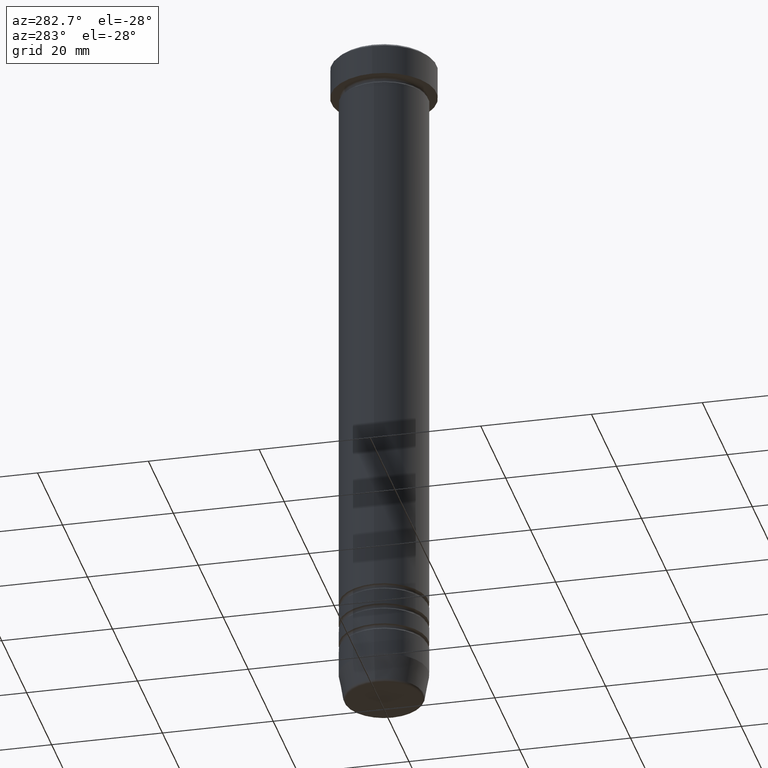
[diagram: clean part render]
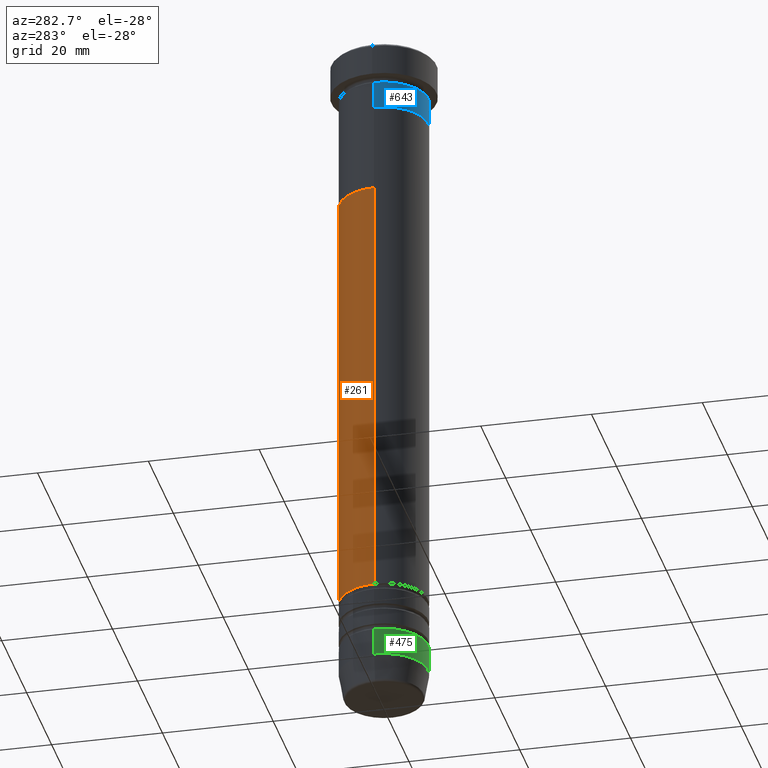
[diagram: same view with three faces highlighted in distinct colors, each labeled with its STEP entity id]
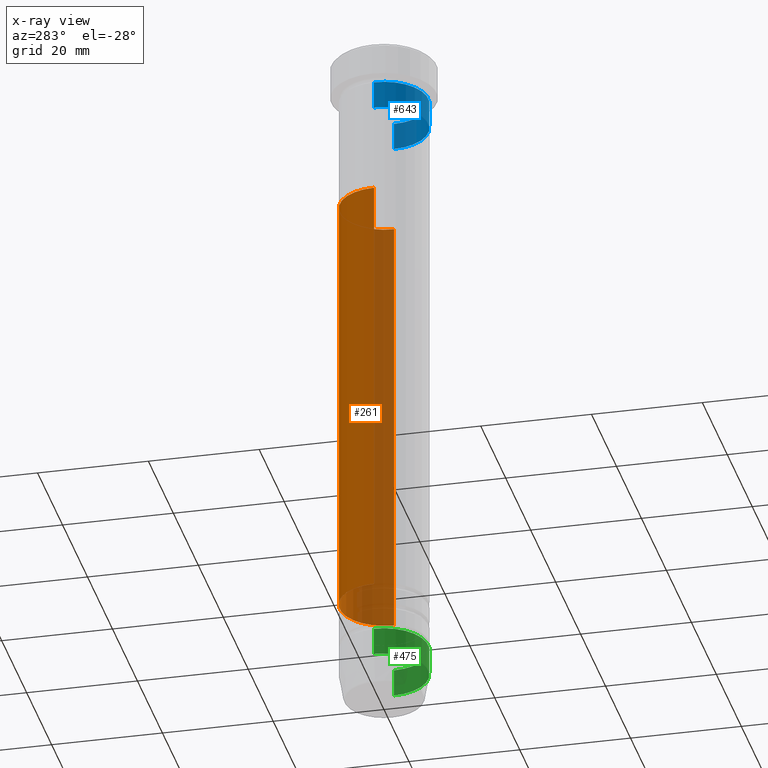
[diagram: x-ray of the same camera — body ghosted, the three highlighted faces saturated]
A machine part, auxiliary view with three faces highlighted in distinct colors.
The next image is the same camera in x-ray (body ghosted, the three faces saturated) — at least one of them is partly hidden behind the body in this view.
Their STEP definitions:

[orange] entity #261 — the highlighted cylindrical surface (partial cylindrical patch) has radius 8 mm, axis along (-0, -0, 1).
#9 = CARTESIAN_POINT ( 'NONE',  ( 7.999999999999991118, 0.000000000000000000, -107.0000000000000142 ) ) ;
#48 = AXIS2_PLACEMENT_3D ( 'NONE', #920, #657, #50 ) ;
#50 = DIRECTION ( 'NONE',  ( 1.000000000000000000, 0.000000000000000000, 0.000000000000000000 ) ) ;
#64 = EDGE_CURVE ( 'NONE', #579, #902, #163, .T. ) ;
#95 = DIRECTION ( 'NONE',  ( 1.000000000000000000, 0.000000000000000000, 0.000000000000000000 ) ) ;
#146 = VERTEX_POINT ( 'NONE', #945 ) ;
#163 = LINE ( 'NONE', #506, #467 ) ;
#169 = EDGE_CURVE ( 'NONE', #579, #510, #280, .T. ) ;
#224 = CARTESIAN_POINT ( 'NONE',  ( 0.000000000000000000, 0.000000000000000000, -28.00000000000000000 ) ) ;
#230 = ORIENTED_EDGE ( 'NONE', *, *, #64, .F. ) ;
#233 = DIRECTION ( 'NONE',  ( -0.000000000000000000, -0.000000000000000000, 1.000000000000000000 ) ) ;
#242 = AXIS2_PLACEMENT_3D ( 'NONE', #1035, #233, #95 ) ;
#261 = ADVANCED_FACE ( 'NONE', ( #1127 ), #667, .T. ) ;
#280 = CIRCLE ( 'NONE', #48, 7.999999999999991118 ) ;
#290 = CARTESIAN_POINT ( 'NONE',  ( 8.000000000000000000, 0.000000000000000000, -28.00000000000000000 ) ) ;
#320 = DIRECTION ( 'NONE',  ( -0.000000000000000000, -0.000000000000000000, 1.000000000000000000 ) ) ;
#330 = EDGE_CURVE ( 'NONE', #510, #146, #977, .T. ) ;
#377 = AXIS2_PLACEMENT_3D ( 'NONE', #224, #320, #557 ) ;
#431 = DIRECTION ( 'NONE',  ( -0.000000000000000000, -0.000000000000000000, 1.000000000000000000 ) ) ;
#442 = ORIENTED_EDGE ( 'NONE', *, *, #169, .T. ) ;
#467 = VECTOR ( 'NONE', #431, 1000.000000000000000 ) ;
#506 = CARTESIAN_POINT ( 'NONE',  ( 7.999999999999996447, 0.000000000000000000, 0.000000000000000000 ) ) ;
#510 = VERTEX_POINT ( 'NONE', #1015 ) ;
#557 = DIRECTION ( 'NONE',  ( 1.000000000000000000, 0.000000000000000000, 0.000000000000000000 ) ) ;
#579 = VERTEX_POINT ( 'NONE', #9 ) ;
#594 = CARTESIAN_POINT ( 'NONE',  ( -7.999999999999996447, 9.797174393178821713E-16, 0.000000000000000000 ) ) ;
#657 = DIRECTION ( 'NONE',  ( -0.000000000000000000, -0.000000000000000000, 1.000000000000000000 ) ) ;
#660 = EDGE_LOOP ( 'NONE', ( #442, #997, #739, #230 ) ) ;
#667 = CYLINDRICAL_SURFACE ( 'NONE', #242, 7.999999999999996447 ) ;
#739 = ORIENTED_EDGE ( 'NONE', *, *, #979, .F. ) ;
#838 = VECTOR ( 'NONE', #1050, 1000.000000000000000 ) ;
#902 = VERTEX_POINT ( 'NONE', #290 ) ;
#920 = CARTESIAN_POINT ( 'NONE',  ( 0.000000000000000000, 0.000000000000000000, -107.0000000000000142 ) ) ;
#945 = CARTESIAN_POINT ( 'NONE',  ( -8.000000000000000000, 9.797174393178825657E-16, -28.00000000000000000 ) ) ;
#972 = CIRCLE ( 'NONE', #377, 8.000000000000000000 ) ;
#977 = LINE ( 'NONE', #594, #838 ) ;
#979 = EDGE_CURVE ( 'NONE', #902, #146, #972, .T. ) ;
#997 = ORIENTED_EDGE ( 'NONE', *, *, #330, .T. ) ;
#1015 = CARTESIAN_POINT ( 'NONE',  ( -7.999999999999991118, 9.797174393178819741E-16, -107.0000000000000142 ) ) ;
#1035 = CARTESIAN_POINT ( 'NONE',  ( 0.000000000000000000, 0.000000000000000000, 0.000000000000000000 ) ) ;
#1050 = DIRECTION ( 'NONE',  ( -0.000000000000000000, -0.000000000000000000, 1.000000000000000000 ) ) ;
#1127 = FACE_OUTER_BOUND ( 'NONE', #660, .T. ) ;

[blue] entity #643 — the highlighted cylindrical surface (partial cylindrical patch) has radius 8 mm, axis along (-0, -0, 1).
#53 = DIRECTION ( 'NONE',  ( 1.000000000000000000, 0.000000000000000000, 0.000000000000000000 ) ) ;
#60 = DIRECTION ( 'NONE',  ( -0.000000000000000000, -0.000000000000000000, 1.000000000000000000 ) ) ;
#61 = VERTEX_POINT ( 'NONE', #363 ) ;
#63 = VECTOR ( 'NONE', #60, 1000.000000000000000 ) ;
#92 = CARTESIAN_POINT ( 'NONE',  ( 0.000000000000000000, 0.000000000000000000, 0.000000000000000000 ) ) ;
#114 = EDGE_CURVE ( 'NONE', #539, #505, #488, .T. ) ;
#133 = CARTESIAN_POINT ( 'NONE',  ( -8.000000000000000000, 9.797174393178825657E-16, 0.000000000000000000 ) ) ;
#147 = EDGE_CURVE ( 'NONE', #896, #61, #411, .T. ) ;
#205 = AXIS2_PLACEMENT_3D ( 'NONE', #393, #306, #53 ) ;
#225 = AXIS2_PLACEMENT_3D ( 'NONE', #92, #614, #889 ) ;
#306 = DIRECTION ( 'NONE',  ( -0.000000000000000000, -0.000000000000000000, 1.000000000000000000 ) ) ;
#358 = ORIENTED_EDGE ( 'NONE', *, *, #114, .T. ) ;
#363 = CARTESIAN_POINT ( 'NONE',  ( -8.000000000000000000, 9.797174393178825657E-16, -6.999999999999999112 ) ) ;
#393 = CARTESIAN_POINT ( 'NONE',  ( 0.000000000000000000, 0.000000000000000000, -12.00000000000000000 ) ) ;
#411 = LINE ( 'NONE', #133, #856 ) ;
#443 = ORIENTED_EDGE ( 'NONE', *, *, #502, .F. ) ;
#480 = DIRECTION ( 'NONE',  ( 1.000000000000000000, 0.000000000000000000, 0.000000000000000000 ) ) ;
#488 = LINE ( 'NONE', #1017, #63 ) ;
#502 = EDGE_CURVE ( 'NONE', #61, #505, #727, .T. ) ;
#505 = VERTEX_POINT ( 'NONE', #645 ) ;
#507 = CARTESIAN_POINT ( 'NONE',  ( 0.000000000000000000, 0.000000000000000000, -6.999999999999999112 ) ) ;
#539 = VERTEX_POINT ( 'NONE', #812 ) ;
#614 = DIRECTION ( 'NONE',  ( -0.000000000000000000, -0.000000000000000000, 1.000000000000000000 ) ) ;
#619 = CARTESIAN_POINT ( 'NONE',  ( -8.000000000000000000, 9.797174393178825657E-16, -12.00000000000000000 ) ) ;
#643 = ADVANCED_FACE ( 'NONE', ( #970 ), #878, .T. ) ;
#645 = CARTESIAN_POINT ( 'NONE',  ( 8.000000000000000000, 0.000000000000000000, -6.999999999999999112 ) ) ;
#727 = CIRCLE ( 'NONE', #892, 8.000000000000000000 ) ;
#759 = CIRCLE ( 'NONE', #205, 8.000000000000000000 ) ;
#812 = CARTESIAN_POINT ( 'NONE',  ( 8.000000000000000000, 0.000000000000000000, -12.00000000000000000 ) ) ;
#816 = EDGE_LOOP ( 'NONE', ( #1012, #1080, #358, #443 ) ) ;
#839 = DIRECTION ( 'NONE',  ( -0.000000000000000000, -0.000000000000000000, 1.000000000000000000 ) ) ;
#856 = VECTOR ( 'NONE', #839, 1000.000000000000000 ) ;
#878 = CYLINDRICAL_SURFACE ( 'NONE', #225, 8.000000000000000000 ) ;
#889 = DIRECTION ( 'NONE',  ( 1.000000000000000000, 0.000000000000000000, 0.000000000000000000 ) ) ;
#892 = AXIS2_PLACEMENT_3D ( 'NONE', #507, #1113, #480 ) ;
#896 = VERTEX_POINT ( 'NONE', #619 ) ;
#970 = FACE_OUTER_BOUND ( 'NONE', #816, .T. ) ;
#1012 = ORIENTED_EDGE ( 'NONE', *, *, #147, .F. ) ;
#1017 = CARTESIAN_POINT ( 'NONE',  ( 8.000000000000000000, 0.000000000000000000, 0.000000000000000000 ) ) ;
#1041 = EDGE_CURVE ( 'NONE', #896, #539, #759, .T. ) ;
#1080 = ORIENTED_EDGE ( 'NONE', *, *, #1041, .T. ) ;
#1113 = DIRECTION ( 'NONE',  ( -0.000000000000000000, -0.000000000000000000, 1.000000000000000000 ) ) ;

[green] entity #475 — the highlighted cylindrical surface (partial cylindrical patch) has radius 8 mm, axis along (-0, -0, 1).
#16 = LINE ( 'NONE', #388, #66 ) ;
#26 = VERTEX_POINT ( 'NONE', #756 ) ;
#58 = CARTESIAN_POINT ( 'NONE',  ( 0.000000000000000000, 0.000000000000000000, -121.0000000000000000 ) ) ;
#66 = VECTOR ( 'NONE', #278, 1000.000000000000000 ) ;
#67 = CIRCLE ( 'NONE', #706, 7.999999999999998224 ) ;
#186 = FACE_OUTER_BOUND ( 'NONE', #906, .T. ) ;
#247 = CARTESIAN_POINT ( 'NONE',  ( 7.999999999999998224, 0.000000000000000000, -121.0000000000000000 ) ) ;
#278 = DIRECTION ( 'NONE',  ( -0.000000000000000000, -0.000000000000000000, 1.000000000000000000 ) ) ;
#314 = DIRECTION ( 'NONE',  ( -0.000000000000000000, -0.000000000000000000, 1.000000000000000000 ) ) ;
#346 = VERTEX_POINT ( 'NONE', #1134 ) ;
#388 = CARTESIAN_POINT ( 'NONE',  ( 7.999999999999998224, 0.000000000000000000, 0.000000000000000000 ) ) ;
#430 = ORIENTED_EDGE ( 'NONE', *, *, #575, .F. ) ;
#434 = VECTOR ( 'NONE', #314, 1000.000000000000000 ) ;
#448 = EDGE_CURVE ( 'NONE', #1097, #346, #16, .T. ) ;
#470 = CIRCLE ( 'NONE', #820, 7.999999999999998224 ) ;
#475 = ADVANCED_FACE ( 'NONE', ( #186 ), #537, .T. ) ;
#479 = DIRECTION ( 'NONE',  ( 1.000000000000000000, 0.000000000000000000, 0.000000000000000000 ) ) ;
#537 = CYLINDRICAL_SURFACE ( 'NONE', #1144, 7.999999999999998224 ) ;
#550 = DIRECTION ( 'NONE',  ( 1.000000000000000000, 0.000000000000000000, 0.000000000000000000 ) ) ;
#575 = EDGE_CURVE ( 'NONE', #26, #635, #755, .T. ) ;
#604 = CARTESIAN_POINT ( 'NONE',  ( -7.999999999999998224, 9.797174393178823685E-16, -116.0000000000000000 ) ) ;
#615 = EDGE_CURVE ( 'NONE', #635, #346, #67, .T. ) ;
#618 = DIRECTION ( 'NONE',  ( 1.000000000000000000, 0.000000000000000000, 0.000000000000000000 ) ) ;
#635 = VERTEX_POINT ( 'NONE', #604 ) ;
#687 = ORIENTED_EDGE ( 'NONE', *, *, #998, .T. ) ;
#688 = ORIENTED_EDGE ( 'NONE', *, *, #448, .T. ) ;
#706 = AXIS2_PLACEMENT_3D ( 'NONE', #1078, #1086, #618 ) ;
#717 = CARTESIAN_POINT ( 'NONE',  ( 0.000000000000000000, 0.000000000000000000, 0.000000000000000000 ) ) ;
#730 = ORIENTED_EDGE ( 'NONE', *, *, #615, .F. ) ;
#749 = CARTESIAN_POINT ( 'NONE',  ( -7.999999999999998224, 9.797174393178823685E-16, 0.000000000000000000 ) ) ;
#755 = LINE ( 'NONE', #749, #434 ) ;
#756 = CARTESIAN_POINT ( 'NONE',  ( -7.999999999999998224, 9.797174393178823685E-16, -121.0000000000000000 ) ) ;
#820 = AXIS2_PLACEMENT_3D ( 'NONE', #58, #1122, #479 ) ;
#906 = EDGE_LOOP ( 'NONE', ( #430, #687, #688, #730 ) ) ;
#988 = DIRECTION ( 'NONE',  ( -0.000000000000000000, -0.000000000000000000, 1.000000000000000000 ) ) ;
#998 = EDGE_CURVE ( 'NONE', #26, #1097, #470, .T. ) ;
#1078 = CARTESIAN_POINT ( 'NONE',  ( 0.000000000000000000, 0.000000000000000000, -116.0000000000000000 ) ) ;
#1086 = DIRECTION ( 'NONE',  ( -0.000000000000000000, -0.000000000000000000, 1.000000000000000000 ) ) ;
#1097 = VERTEX_POINT ( 'NONE', #247 ) ;
#1122 = DIRECTION ( 'NONE',  ( -0.000000000000000000, -0.000000000000000000, 1.000000000000000000 ) ) ;
#1134 = CARTESIAN_POINT ( 'NONE',  ( 7.999999999999998224, 0.000000000000000000, -116.0000000000000000 ) ) ;
#1144 = AXIS2_PLACEMENT_3D ( 'NONE', #717, #988, #550 ) ;